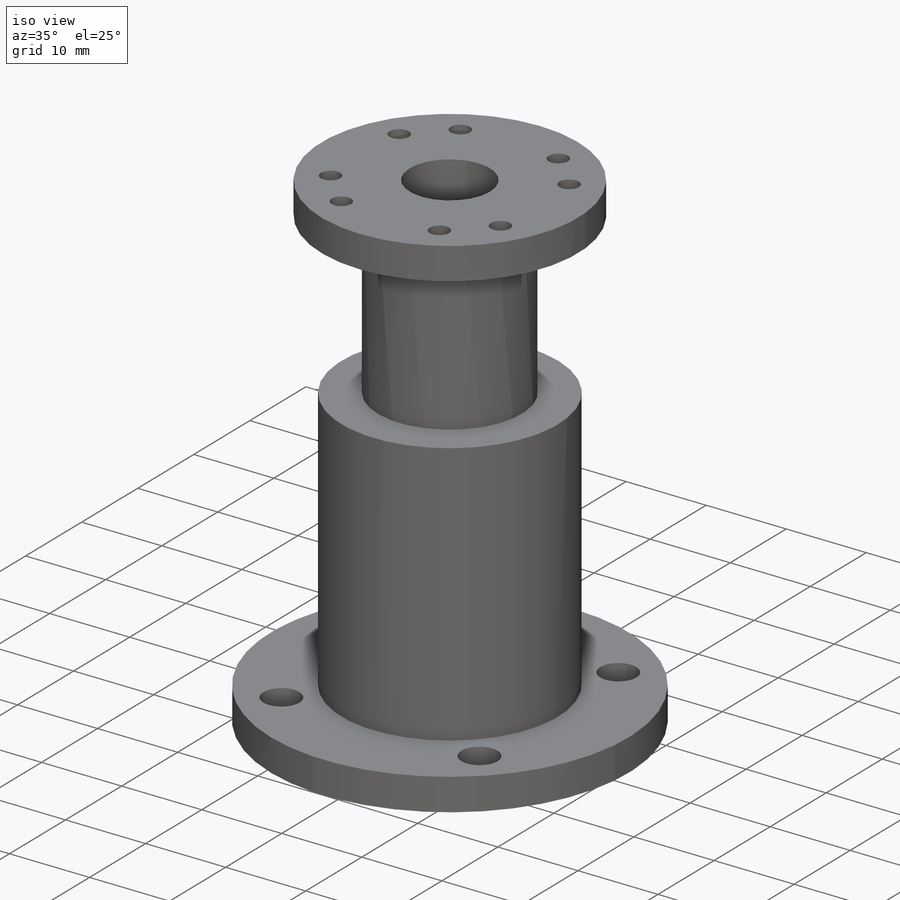
[diagram: iso view]
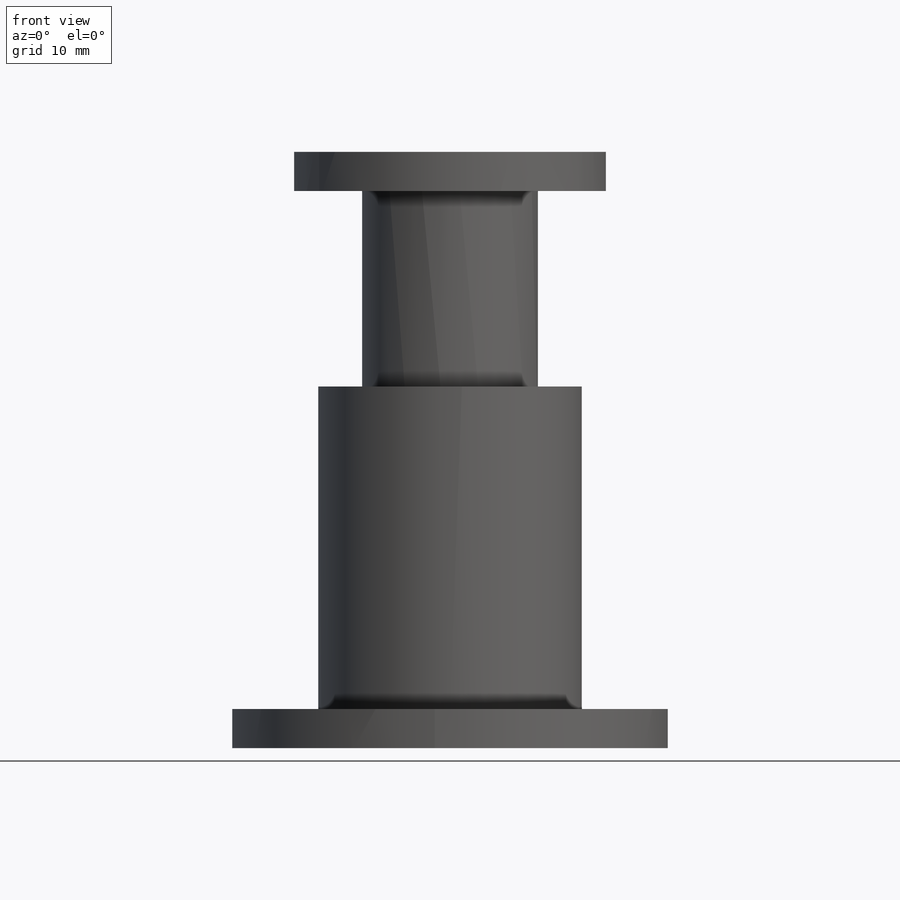
[diagram: front view]
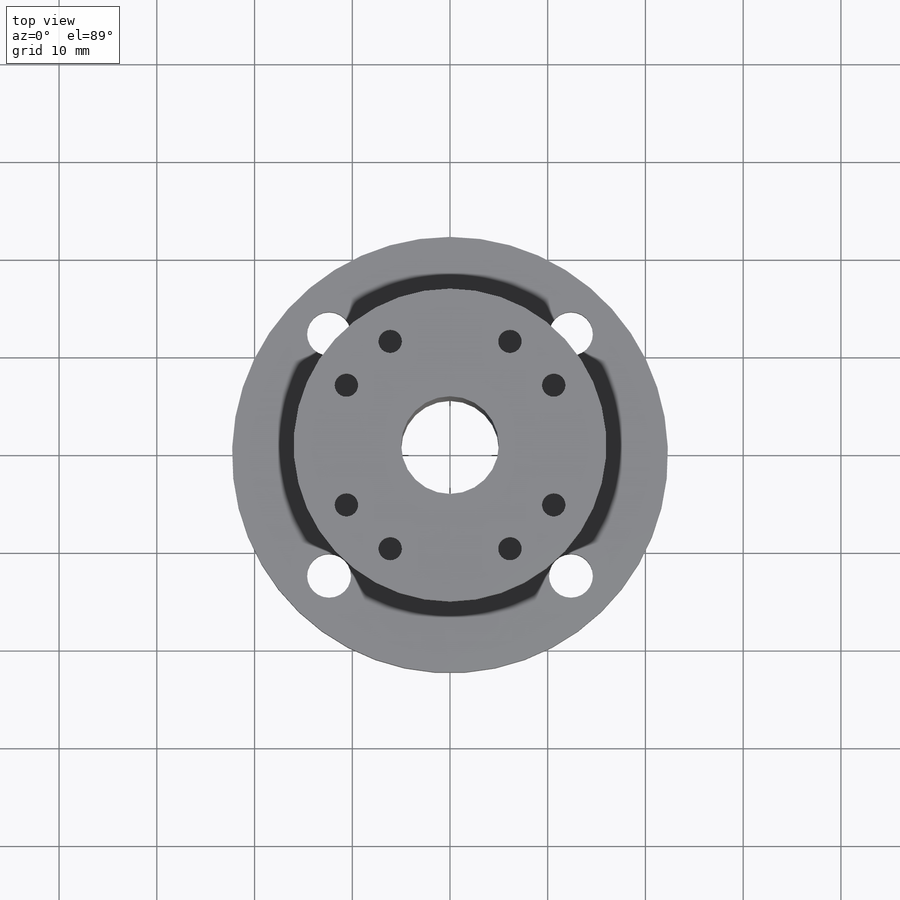
[diagram: top view]
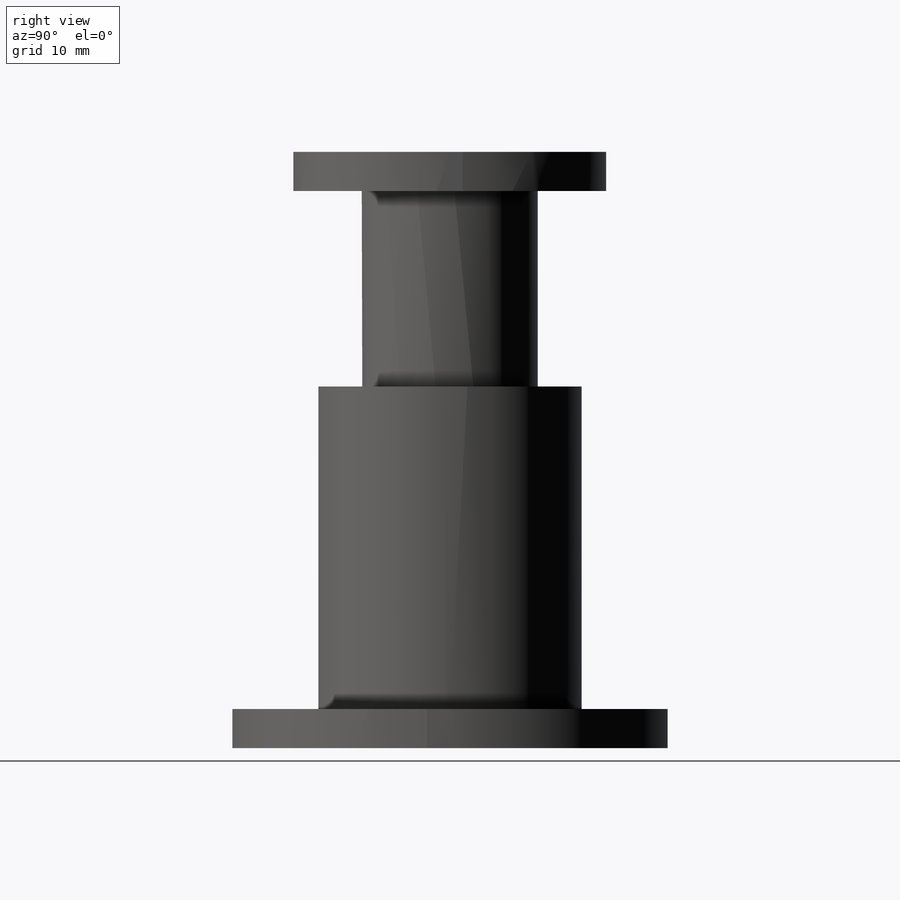
[diagram: right view]
SOLIDWORKS PART (.sldprt)
format: sldprt  version: not decoded by parser v0  size: 273,408 bytes
history: native  units: mm
features: sketch x7, extrude x2, hole x2, material x1, revolve x1 (+16 scaffold rows collapsed)
feature tree (29):
  scaffold x16  (default folders/planes/origin — collapsed)
  material  "Material <not specified>"
  sketch  "Sketch1"  dims[c1.D2=28.0mm c1.D3=~35.116093mm c1.D4=9.5mm c1.D5=5.0mm c2.D3=33.0mm c2.D1=4.0mm]
  revolve  "Revolve1"  Angle=360deg
  sketch  "Sketch2"  dims[D1=44.6mm]
  extrude  "Boss-Extrude1"  Depth=4mm
  hole  "M4 Clearance Hole1"  Diameter=4.5mm Depth=61mm
  sketch  "Sketch5"  dims[c1.D1=~23.525929mm c1.D2=35.0mm c2.D1=35.0mm]
  sketch  "Sketch4"  dims[hole-wizard template sketch: 60 standard entries collapsed; hole parameters kept: c18.Thru Hole Depth=61.0mm]
  sketch  "Sketch6"  dims[D1=7.0mm]
  extrude  "Boss-Extrude2"  Depth=4mm
  hole  "M2 Clearance Hole1"  Diameter=2.4mm Depth=4mm
  sketch  "Sketch8"  dims[c1.D1=24.5mm c1.D2=24.0mm c2.D2=60.0deg c2.D3=24.0mm c3.D3=60.0deg c3.D4=24.0mm c4.D4=30.0deg c4.D5=~22.64501mm c5.D5=30.0deg]
  sketch  "Sketch7"  dims[hole-wizard template sketch: 60 standard entries collapsed; hole parameters kept: c18.Thru Hole Depth=4.0mm]
decode coverage: 12 of 12 modeling features carry decoded parameters
note: ~ marks probable driven/reference dimensions
note: suppression state not decoded; provenance and decode notes live in map.json
